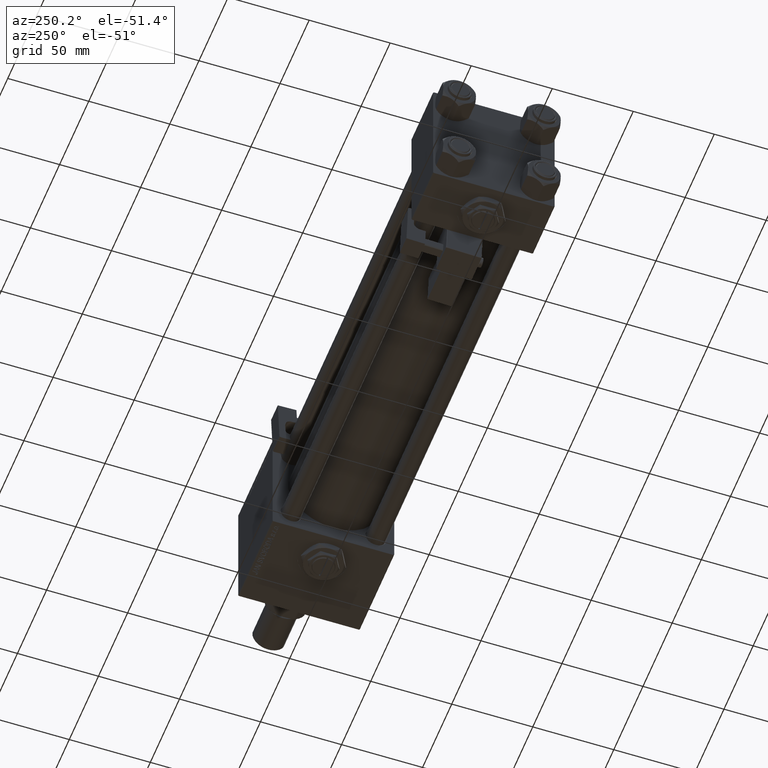
[diagram: clean part render]
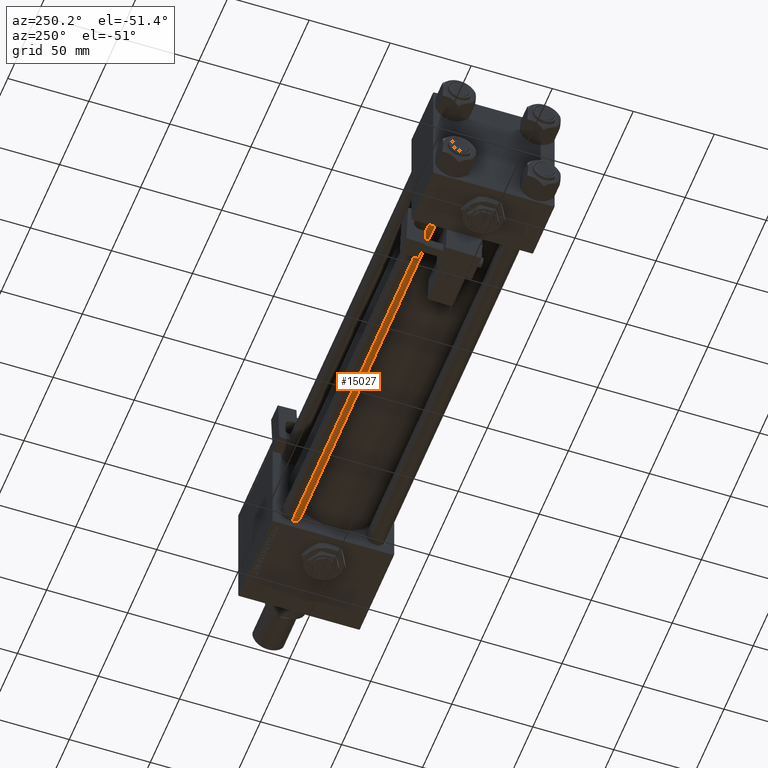
[diagram: same view with one face highlighted and labeled with its STEP entity id]
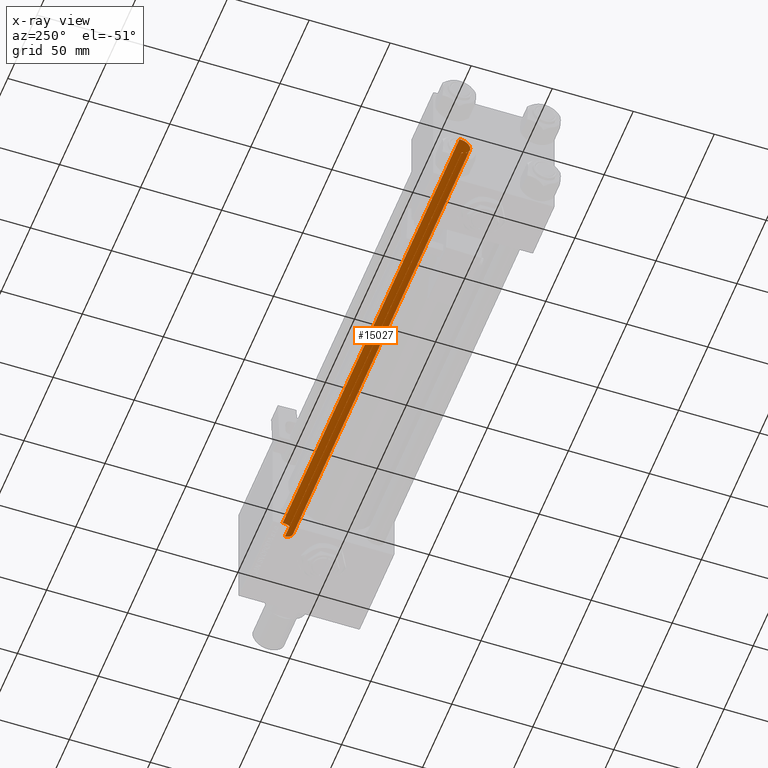
[diagram: x-ray of the same camera — body ghosted, the highlighted face saturated]
A machine part, auxiliary view. The second image highlights one B-rep face of the part: STEP entity #15027.
The next image is the same camera in x-ray: the body ghosted, the highlighted face saturated — about 0% of this face is hidden behind the body in this view.
In plain terms, the highlighted cylindrical surface (edge-blend (fillet) strip) has radius 6 mm, axis along (1, -0, 0).
Its self-contained STEP definition (entity closure, byte-faithful):
#1745 = DIRECTION ( 'NONE',  ( -0.000000000000000000, -0.000000000000000000, -1.000000000000000000 ) ) ;
#2868 = CARTESIAN_POINT ( 'NONE',  ( 6.000000000000000888, 7.347880794884120722E-16, 303.5000000000000000 ) ) ;
#3709 = CARTESIAN_POINT ( 'NONE',  ( -6.000000000000000888, 0.000000000000000000, 304.0000000000000000 ) ) ;
#5114 = LINE ( 'NONE', #47858, #8282 ) ;
#8282 = VECTOR ( 'NONE', #1745, 1000.000000000000000 ) ;
#12186 = CIRCLE ( 'NONE', #41463, 6.000000000000000888 ) ;
#12357 = FACE_OUTER_BOUND ( 'NONE', #14079, .T. ) ;
#13902 = VERTEX_POINT ( 'NONE', #45801 ) ;
#14079 = EDGE_LOOP ( 'NONE', ( #22143, #44153, #47617, #23565 ) ) ;
#15027 = ADVANCED_FACE ( 'NONE', ( #12357 ), #20431, .T. ) ;
#17139 = LINE ( 'NONE', #3709, #49861 ) ;
#18071 = VERTEX_POINT ( 'NONE', #44325 ) ;
#18322 = EDGE_CURVE ( 'NONE', #48144, #38599, #5114, .T. ) ;
#18431 = CARTESIAN_POINT ( 'NONE',  ( 6.000000000000000888, 7.347880794884120722E-16, 0.4999999999999449329 ) ) ;
#19242 = CARTESIAN_POINT ( 'NONE',  ( 0.000000000000000000, 0.000000000000000000, 0.4999999999999449329 ) ) ;
#20431 = CYLINDRICAL_SURFACE ( 'NONE', #54227, 6.000000000000000888 ) ;
#22143 = ORIENTED_EDGE ( 'NONE', *, *, #18322, .F. ) ;
#23565 = ORIENTED_EDGE ( 'NONE', *, *, #36791, .T. ) ;
#24060 = CARTESIAN_POINT ( 'NONE',  ( 0.000000000000000000, 0.000000000000000000, 304.0000000000000000 ) ) ;
#26683 = EDGE_CURVE ( 'NONE', #48144, #18071, #50189, .T. ) ;
#28698 = CARTESIAN_POINT ( 'NONE',  ( 0.000000000000000000, 0.000000000000000000, 303.5000000000000000 ) ) ;
#33161 = DIRECTION ( 'NONE',  ( -0.000000000000000000, -0.000000000000000000, -1.000000000000000000 ) ) ;
#36791 = EDGE_CURVE ( 'NONE', #13902, #38599, #12186, .T. ) ;
#37317 = DIRECTION ( 'NONE',  ( 0.000000000000000000, 0.000000000000000000, -1.000000000000000000 ) ) ;
#38599 = VERTEX_POINT ( 'NONE', #18431 ) ;
#41008 = DIRECTION ( 'NONE',  ( -0.000000000000000000, -0.000000000000000000, -1.000000000000000000 ) ) ;
#41463 = AXIS2_PLACEMENT_3D ( 'NONE', #19242, #51140, #46697 ) ;
#41810 = DIRECTION ( 'NONE',  ( -1.000000000000000000, 0.000000000000000000, 0.000000000000000000 ) ) ;
#42186 = AXIS2_PLACEMENT_3D ( 'NONE', #28698, #37317, #54225 ) ;
#44153 = ORIENTED_EDGE ( 'NONE', *, *, #26683, .T. ) ;
#44325 = CARTESIAN_POINT ( 'NONE',  ( -6.000000000000000888, 0.000000000000000000, 303.5000000000000000 ) ) ;
#45801 = CARTESIAN_POINT ( 'NONE',  ( -6.000000000000000888, 0.000000000000000000, 0.4999999999999449329 ) ) ;
#46697 = DIRECTION ( 'NONE',  ( 1.000000000000000000, 0.000000000000000000, 0.000000000000000000 ) ) ;
#47617 = ORIENTED_EDGE ( 'NONE', *, *, #51306, .T. ) ;
#47858 = CARTESIAN_POINT ( 'NONE',  ( 6.000000000000000888, 7.347880794884120722E-16, 304.0000000000000000 ) ) ;
#48144 = VERTEX_POINT ( 'NONE', #2868 ) ;
#49861 = VECTOR ( 'NONE', #33161, 1000.000000000000000 ) ;
#50189 = CIRCLE ( 'NONE', #42186, 6.000000000000000888 ) ;
#51140 = DIRECTION ( 'NONE',  ( -0.000000000000000000, -0.000000000000000000, 1.000000000000000000 ) ) ;
#51306 = EDGE_CURVE ( 'NONE', #18071, #13902, #17139, .T. ) ;
#54225 = DIRECTION ( 'NONE',  ( 1.000000000000000000, 0.000000000000000000, 0.000000000000000000 ) ) ;
#54227 = AXIS2_PLACEMENT_3D ( 'NONE', #24060, #41008, #41810 ) ;